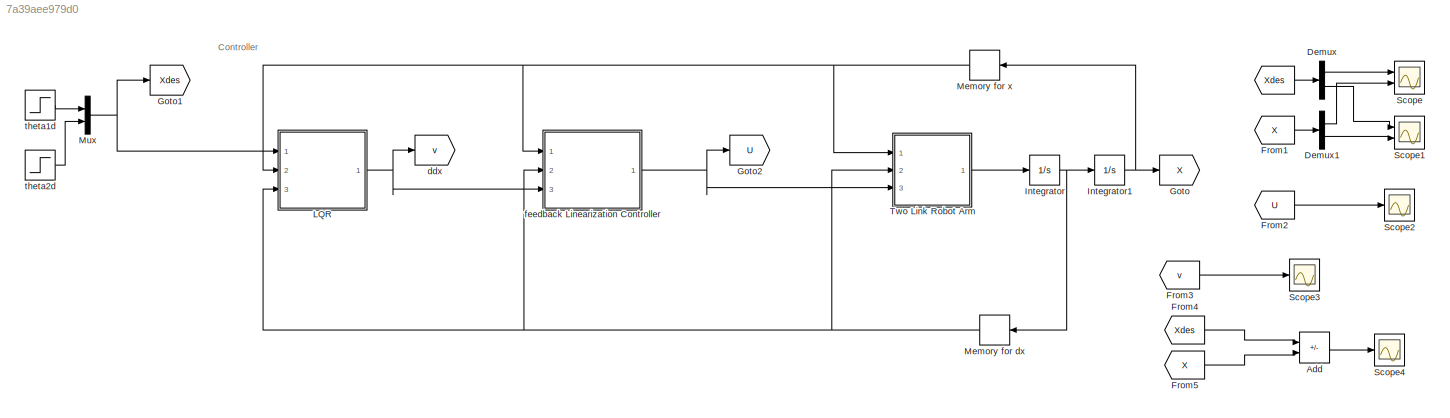
MODEL slx_7a39aee979d0
KIND model
CONFIG AbsTol = auto
CONFIG EnableMultiTasking = off
CONFIG FixedStep = 0.01
CONFIG MaxStep = auto
CONFIG MinStep = auto
CONFIG RelTol = 1e-3
CONFIG SampleTimeConstraint = Unconstrained
CONFIG SolverName = FixedStepAuto
CONFIG StartTime = 0.0
CONFIG StopTime = 3
BLOCK [From]  
  GotoTag = Xdes
  TagVisibility = global
BLOCK [Sum] Add
  IconShape = rectangular
  Inputs = +-
  Ports = [2, 1]
BLOCK [Demux] Demux
  Outputs = 2
  Ports = [1, 2]
BLOCK [Demux] Demux1
  Outputs = 2
  Ports = [1, 2]
BLOCK [From] From1
  GotoTag = X
  TagVisibility = global
BLOCK [From] From2
  GotoTag = U
  TagVisibility = global
BLOCK [From] From3
  GotoTag = v
  TagVisibility = global
BLOCK [From] From4
  GotoTag = Xdes
  TagVisibility = global
BLOCK [From] From5
  GotoTag = X
  TagVisibility = global
BLOCK [Goto] Goto
  GotoTag = X
  TagVisibility = global
BLOCK [Goto] Goto1
  GotoTag = Xdes
  TagVisibility = global
BLOCK [Goto] Goto2
  GotoTag = U
  TagVisibility = global
BLOCK [Integrator] Integrator
  InitialCondition = [0 0]
  Ports = [1, 1]
BLOCK [Integrator] Integrator1
  InitialCondition = [pi/2 -pi/2]
  Ports = [1, 1]
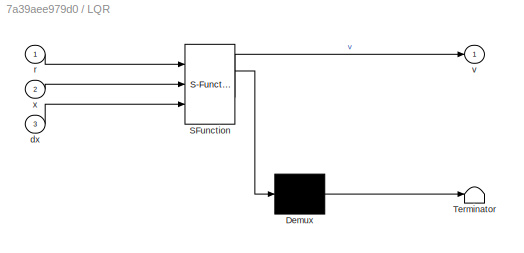
BLOCK [SubSystem] LQR
  ErrorFcn = Stateflow.Translate.translate
  PermitHierarchicalResolution = ExplicitOnly
  Ports = [3, 1]
  RequestExecContextInheritance = off
  SFBlockType = MATLAB Function
  TreatAsAtomicUnit = on
BLOCK [Demux] LQR/ Demux 
  Outputs = 1
  Ports = [1, 1]
BLOCK [S-Function] LQR/ SFunction 
  EnableBusSupport = on
  FunctionName = sf_sfun
  PortCounts = [3 2]
  Ports = [3, 2]
  SFcnIsStateOwnerBlock = off
  SFunctionDeploymentMode = off
  Tag = Stateflow S-Function 3
BLOCK [Terminator] LQR/ Terminator 
BLOCK [Inport] LQR/dx
  Port = 3
BLOCK [Inport] LQR/r
BLOCK [Outport] LQR/v
BLOCK [Inport] LQR/x
  Port = 2
BLOCK [Memory] Memory for dx
  InitialCondition = [0 0]
  NameLocation = top
BLOCK [Memory] Memory for x
  InitialCondition = [pi/2 -pi/2]
  NameLocation = top
BLOCK [Mux] Mux
  DisplayOption = bar
  Inputs = 2
  Ports = [2, 1]
BLOCK [Scope] Scope
  Floating = off
  NumInputPorts = 2
  Ports = [2]
  ScopeSpecificationString = Simulink.scopes.TimeScopeBlockCfg('CurrentConfiguration', extmgr.ConfigurationSet(extmgr.Configuration('Core','General UI',true,'FigureColor',[1 1 1]),extmgr.Configuration('Core','Source UI',true),extmgr.Configuration('Sources','WiredSimulink',true),extmgr.Configuration('Visuals','Time Domain',true,'SerializedDisplays',{struct('MinYLimReal','-26.33713','MaxYLimReal','4.67168','YLabelReal','\theta_...<+1733ch>
BLOCK [Scope] Scope1
  Floating = off
  NumInputPorts = 2
  Ports = [2]
  ScopeSpecificationString = Simulink.scopes.TimeScopeBlockCfg('CurrentConfiguration', extmgr.ConfigurationSet(extmgr.Configuration('Core','General UI',true,'FigureColor',[1 1 1]),extmgr.Configuration('Core','Source UI',true),extmgr.Configuration('Sources','WiredSimulink',true,'DataLoggingVariableName','ScopeData1'),extmgr.Configuration('Visuals','Time Domain',true,'SerializedDisplays',{struct('MinYLimReal','-4.67168','MaxYLi...<+1686ch>
BLOCK [Scope] Scope2
  Floating = off
  NumInputPorts = 1
  Ports = [1]
  ScopeSpecificationString = Simulink.scopes.TimeScopeBlockCfg('CurrentConfiguration', extmgr.ConfigurationSet(extmgr.Configuration('Core','General UI',true,'FigureColor',[1 1 1]),extmgr.Configuration('Core','Source UI',true),extmgr.Configuration('Sources','WiredSimulink',true,'DataLoggingVariableName','ScopeData2'),extmgr.Configuration('Visuals','Time Domain',true,'SerializedDisplays',{struct('MinYLimReal','-491.55254','MaxY...<+1759ch>
BLOCK [Scope] Scope3
  Floating = off
  NumInputPorts = 1
  Ports = [1]
  ScopeSpecificationString = Simulink.scopes.TimeScopeBlockCfg('CurrentConfiguration', extmgr.ConfigurationSet(extmgr.Configuration('Core','General UI',true,'FigureColor',[1 1 1]),extmgr.Configuration('Core','Source UI',true),extmgr.Configuration('Sources','WiredSimulink',true,'DataLoggingVariableName','ScopeData1'),extmgr.Configuration('Visuals','Time Domain',true,'SerializedDisplays',{struct('MinYLimReal','-13.1245','MaxYLi...<+1737ch>
BLOCK [Scope] Scope4
  Floating = off
  NumInputPorts = 1
  Ports = [1]
  ScopeSpecificationString = Simulink.scopes.TimeScopeBlockCfg('CurrentConfiguration', extmgr.ConfigurationSet(extmgr.Configuration('Core','General UI',true,'FigureColor',[1 1 1]),extmgr.Configuration('Core','Source UI',true),extmgr.Configuration('Sources','WiredSimulink',true,'DataLoggingVariableName','ScopeData1'),extmgr.Configuration('Visuals','Time Domain',true,'SerializedDisplays',{struct('MinYLimReal','-27.08182','MaxYL...<+1719ch>
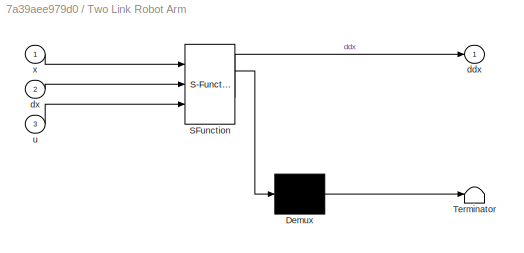
BLOCK [SubSystem] Two Link Robot Arm
  ErrorFcn = Stateflow.Translate.translate
  PermitHierarchicalResolution = ExplicitOnly
  Ports = [3, 1]
  RequestExecContextInheritance = off
  SFBlockType = MATLAB Function
  TreatAsAtomicUnit = on
BLOCK [Demux] Two Link Robot Arm/ Demux 
  Outputs = 1
  Ports = [1, 1]
BLOCK [S-Function] Two Link Robot Arm/ SFunction 
  EnableBusSupport = on
  FunctionName = sf_sfun
  PortCounts = [3 2]
  Ports = [3, 2]
  SFcnIsStateOwnerBlock = off
  SFunctionDeploymentMode = off
  Tag = Stateflow S-Function 2
BLOCK [Terminator] Two Link Robot Arm/ Terminator 
BLOCK [Outport] Two Link Robot Arm/ddx
BLOCK [Inport] Two Link Robot Arm/dx
  Port = 2
BLOCK [Inport] Two Link Robot Arm/u
  Port = 3
BLOCK [Inport] Two Link Robot Arm/x
BLOCK [Goto] ddx
  GotoTag = v
  TagVisibility = global
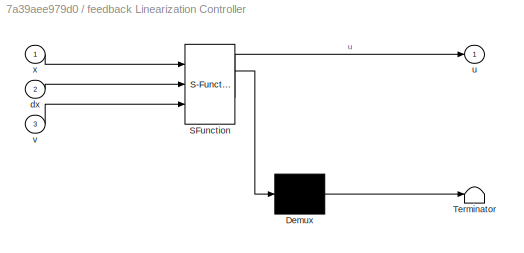
BLOCK [SubSystem] feedback Linearization Controller
  ErrorFcn = Stateflow.Translate.translate
  PermitHierarchicalResolution = ExplicitOnly
  Ports = [3, 1]
  RequestExecContextInheritance = off
  SFBlockType = MATLAB Function
  TreatAsAtomicUnit = on
BLOCK [Demux] feedback Linearization Controller/ Demux 
  Outputs = 1
  Ports = [1, 1]
BLOCK [S-Function] feedback Linearization Controller/ SFunction 
  EnableBusSupport = on
  FunctionName = sf_sfun
  PortCounts = [3 2]
  Ports = [3, 2]
  SFcnIsStateOwnerBlock = off
  SFunctionDeploymentMode = off
  Tag = Stateflow S-Function 1
BLOCK [Terminator] feedback Linearization Controller/ Terminator 
BLOCK [Inport] feedback Linearization Controller/dx
  Port = 2
BLOCK [Outport] feedback Linearization Controller/u
BLOCK [Inport] feedback Linearization Controller/v
  Port = 3
BLOCK [Inport] feedback Linearization Controller/x
BLOCK [Step] theta1d
  After = -pi/2
  SampleTime = 0
  Time = 0
BLOCK [Step] theta2d
  After = pi/2
  SampleTime = 0
  Time = 0
ANNOTATION (root): Controller
LINE  :1 -> Demux:1
LINE Add:1 -> Scope4:1
LINE Demux1:1 -> Scope:2
LINE Demux1:2 -> Scope1:2
LINE Demux:1 -> Scope:1
LINE Demux:2 -> Scope1:1
LINE From1:1 -> Demux1:1
LINE From2:1 -> Scope2:1
LINE From3:1 -> Scope3:1
LINE From4:1 -> Add:1
LINE From5:1 -> Add:2
NET Integrator1:1 -> Goto:1, Memory for x:1
NET Integrator:1 -> Integrator1:1, Memory for dx:1
NET LQR:1 -> ddx:1, feedback Linearization Controller:3
NET Memory for dx:1 -> LQR:3, Two Link Robot Arm:2, feedback Linearization Controller:2
NET Memory for x:1 -> LQR:2, Two Link Robot Arm:1, feedback Linearization Controller:1
NET Mux:1 -> Goto1:1, LQR:1
LINE Two Link Robot Arm:1 -> Integrator:1
NET feedback Linearization Controller:1 -> Goto2:1, Two Link Robot Arm:3
LINE theta1d:1 -> Mux:1
LINE theta2d:1 -> Mux:2
note: NET lines group one-source signal fan-out (src -> all destinations, sorted); 1:1 wires keep LINE
CHART feedback Linearization Controller states=1 transitions=1
  STATE_LABEL 'eML_blk_kernel()'
  STATE_LABEL 'SCRIPT:\nfunction u = fcn(x,dx,v)\n\nM1 = 1;\nM2 = 1;\nL1 = 1;\nL2 = 1;\ng = 9.81;\nG = [-(M1+M2)*g*L1-M2*g*L2*sin(x(1)+x(2));...\n    -M2*g*L2*sin(x(1)+x(2));]; %gravitational \nC = [M1*L1*L2*(2*dx(1)*dx(2) + dx(1)^2)*sin(x(2));...\n    -M2*L1*L2*dx(1)*dx(2)*sin(x(2));]; %coriolis\nM = [-(M1+M2)*L1^2 + M2*L2^2 + 2*M2*L1*L2*cos(x(2)), M2*L2^2 + M2*L1*L2*cos(x(2));...\n     M2*L2^2 + M2*L1*L2*cos(x(2)),  M2*L2^...<+90ch>'
CHART Two Link Robot Arm states=1 transitions=1
  STATE_LABEL 'eML_blk_kernel()'
  STATE_LABEL 'SCRIPT:\nfunction ddx = fcn(x,dx,u)\n\nM1 = 1;\nM2 = 1;\nL1 = 1;\nL2 = 1;\ng = 9.81;\nG = [-(M1+M2)*g*L1-M2*g*L2*sin(x(1)+x(2));...\n    -M2*g*L2*sin(x(1)+x(2));];\nC = [M1*L1*L2*(2*dx(1)*dx(2) + dx(1)^2)*sin(x(2));...\n    -M2*L1*L2*dx(1)*dx(2)*sin(x(2));];\nM = [-(M1+M2)*L1^2 + M2*L2^2 + 2*M2*L1*L2*cos(x(2)), M2*L2^2 + M2*L1*L2*cos(x(2));...\n     M2*L2^2 + M2*L1*L2*cos(x(2)),  M2*L2^2;];\nddx = inv(M)*(-C-G+...<+4ch>'
CHART LQR states=1 transitions=1
  STATE_LABEL 'eML_blk_kernel()'
  STATE_LABEL 'SCRIPT:\nfunction v  = fcn(r,x,dx)\n%r is the reference angle r(1) = -pi/2 and r(2)=pi/2\n%System Dynamics\nA=[0    1;\n   0    0];\nB=[0;\n   1];\nC=[1 0];\nD=0;\n\n%Control Law\n%changing Q and R would change weights of performance and effort resp?\nQ=[1 0; %Penalise angular error\n   0 0]; %Penalise angular rate\n\nR=1; %Penalise thruster effort, positive constant\n\nK=lqr(A,B,Q,R);\n\n%Closed Loop System\nsys=ss((...<+155ch>'
CHART  states=0 transitions=0
CHART  states=0 transitions=0
CHART  states=0 transitions=0
